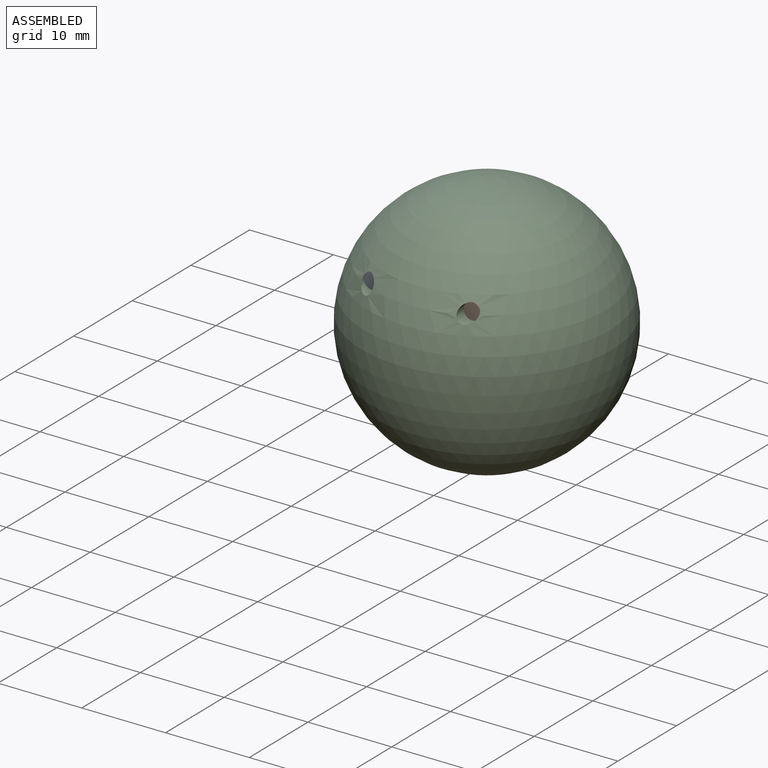
[diagram: assembled view]
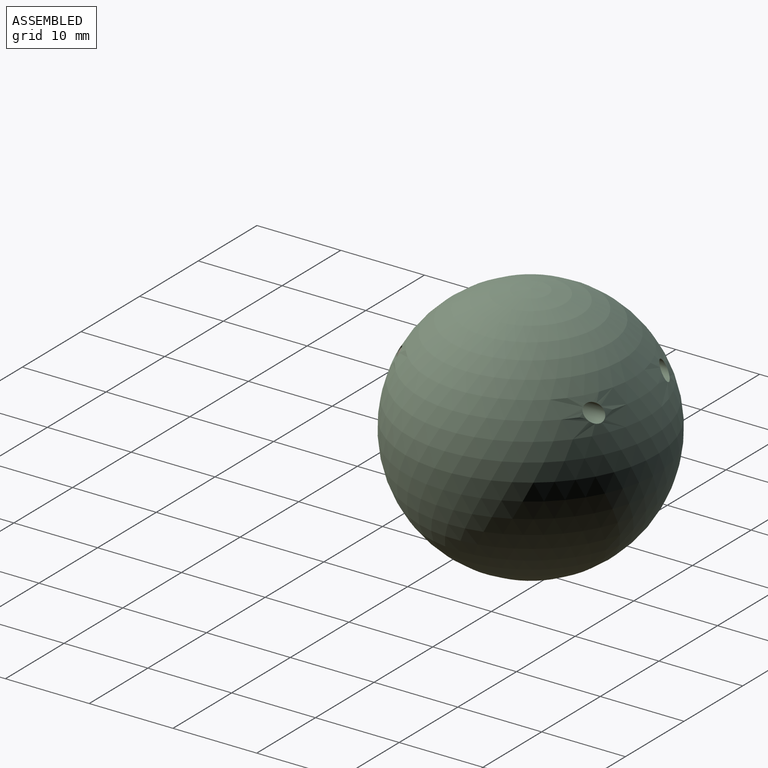
[diagram: assembled view, second angle]
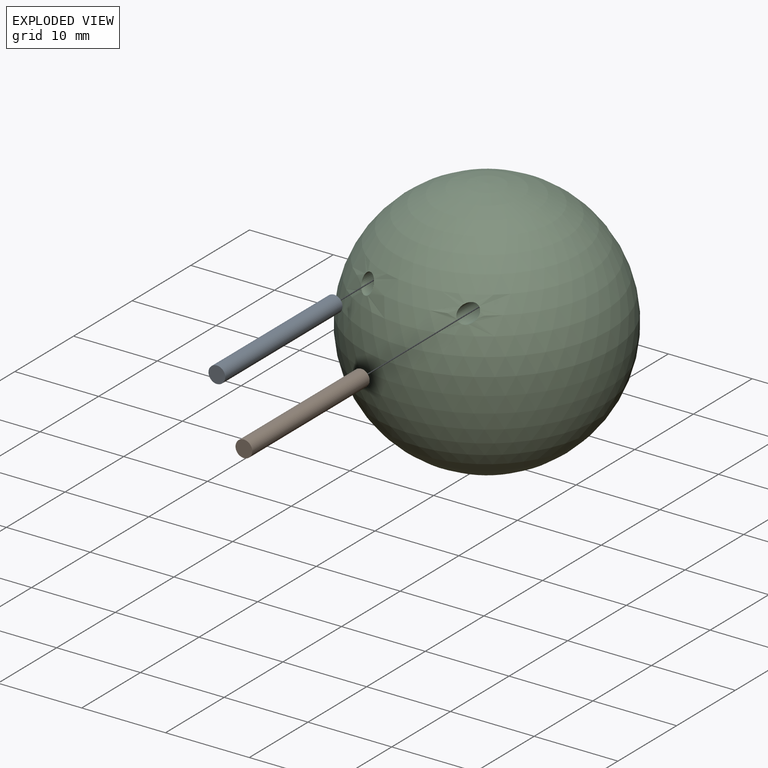
[diagram: exploded view]
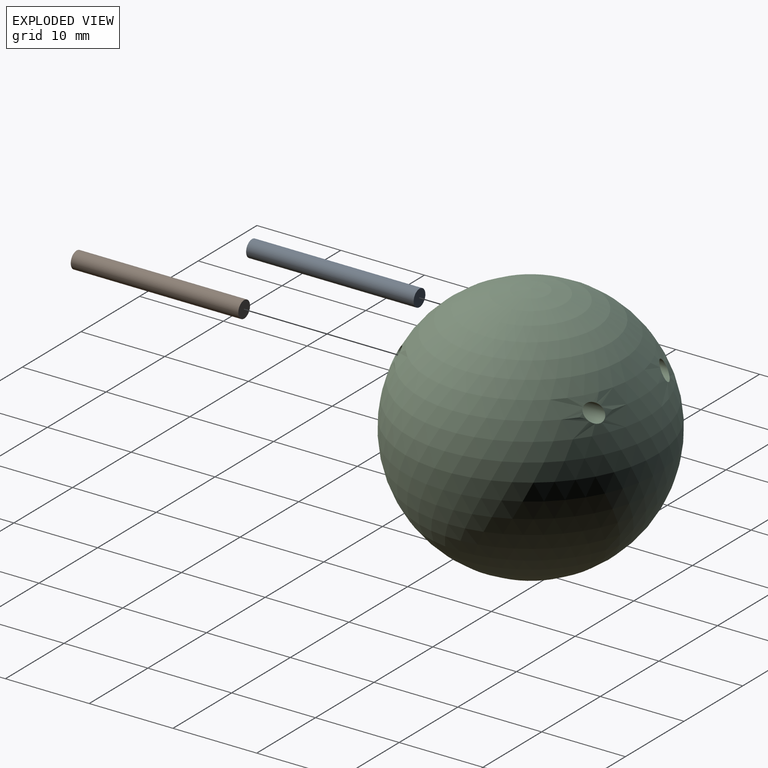
[diagram: exploded view, second angle]
ASSEMBLY  parts=3 mates=2
PART A: 3 faces, bbox 2x20x2 mm
  f0: cylinder r=1mm len=20mm, axis (0,-1,0), area 125.7mm2, adj f1,f2
  f1: plane 2x2mm, normal (0,1,0), area 3.1mm2, adj f0
  f2: plane 2x2mm, normal (0,-1,0), area 3.1mm2, adj f0
PART B: same geometry as A
PART C: 3 faces, bbox 30x30x30 mm
  f0: sphere r=15mm, area 2811.4mm2, adj f1,f2
  f1: cylinder r=1mm len=25.08mm, axis (0,-1,0), area 147.8mm2, adj f0
  f2: cylinder r=1mm len=25.08mm, axis (0,-1,0), area 147.8mm2, adj f0
PLACE A t=(-5.35,-2.82,-4.44)mm
PLACE B t=(6.65,-2.95,-4.44)mm
PLACE C t=(0.65,8.15,-11.46)mm
MATE cylindrical C.f1 <-> B.f0  axis (0,-1,0) through (6.65,-4.54,-4.44)mm
MATE cylindrical A.f0 <-> C.f2  axis (0,-1,0) through (-5.35,-2.82,-4.44)mm
